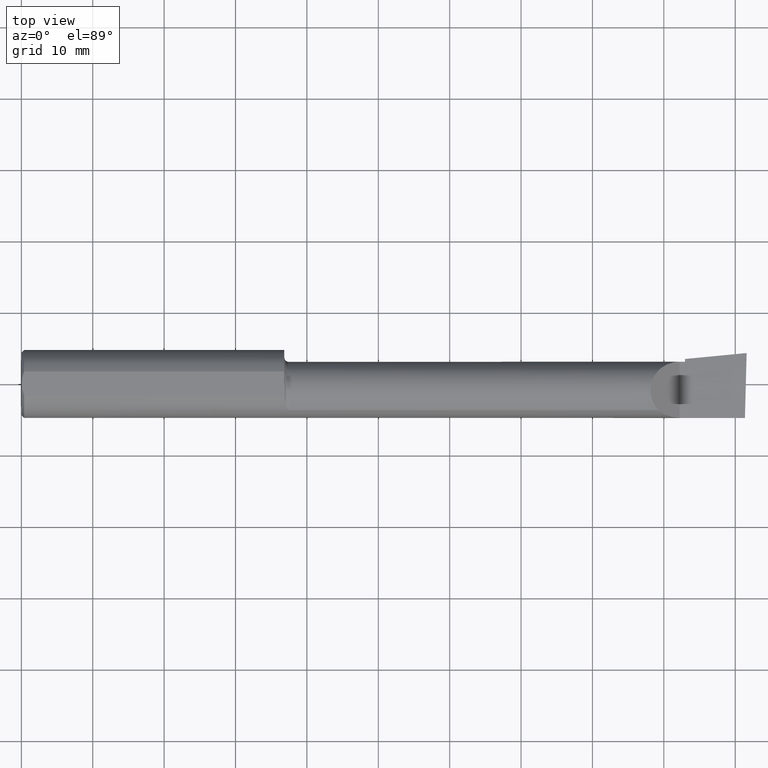
[diagram: clean part render]
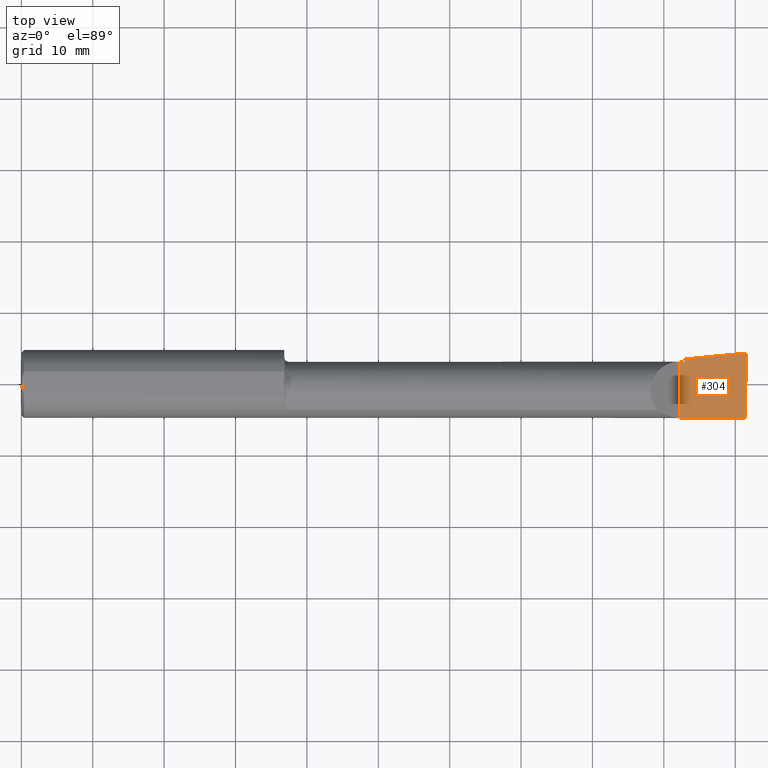
[diagram: same view with one face highlighted and labeled with its STEP entity id]
A machine part, top view. The second image highlights one B-rep face of the part: STEP entity #304.
In plain terms, the highlighted planar face has unit normal (-0, 0, -1).
Its self-contained STEP definition (entity closure, byte-faithful):
#14 = DIRECTION ( 'NONE',  ( 0.9953961983671787417, 0.09584575252022450864, -8.704446866213619353E-17 ) ) ;
#29 = EDGE_CURVE ( 'NONE', #474, #651, #586, .T. ) ;
#53 = LINE ( 'NONE', #253, #266 ) ;
#54 = AXIS2_PLACEMENT_3D ( 'NONE', #299, #501, #504 ) ;
#63 = ORIENTED_EDGE ( 'NONE', *, *, #532, .F. ) ;
#74 = CARTESIAN_POINT ( 'NONE',  ( 6.831754240405861070E-19, 0.1226499999999999257, 1.790477306702064235E-16 ) ) ;
#75 = DIRECTION ( 'NONE',  ( 4.268512490100411279E-18, 1.000000000000000000, -3.732688574539098315E-34 ) ) ;
#78 = CARTESIAN_POINT ( 'NONE',  ( 3.659999999999999698, -0.2500000000000000555, -1.410085000307074674E-16 ) ) ;
#131 = ORIENTED_EDGE ( 'NONE', *, *, #204, .F. ) ;
#138 = VECTOR ( 'NONE', #75, 39.37007874015748143 ) ;
#158 = EDGE_CURVE ( 'NONE', #651, #247, #177, .T. ) ;
#177 = LINE ( 'NONE', #260, #457 ) ;
#200 = EDGE_CURVE ( 'NONE', #293, #247, #515, .T. ) ;
#203 = DIRECTION ( 'NONE',  ( -1.000000000000000000, -0.000000000000000000, -0.000000000000000000 ) ) ;
#204 = EDGE_CURVE ( 'NONE', #553, #474, #381, .T. ) ;
#214 = CARTESIAN_POINT ( 'NONE',  ( 3.999999999999977351, 0.1706500000000262807, 9.240475838569370243E-14 ) ) ;
#247 = VERTEX_POINT ( 'NONE', #214 ) ;
#253 = CARTESIAN_POINT ( 'NONE',  ( 1.565719721143680372E-32, -0.1873499999999999610, 1.790477306702064235E-16 ) ) ;
#254 = VECTOR ( 'NONE', #311, 39.37007874015748143 ) ;
#260 = CARTESIAN_POINT ( 'NONE',  ( 1.839318137477267578, -0.03739999999999999575, 1.820477161534314746E-17 ) ) ;
#266 = VECTOR ( 'NONE', #203, 39.37007874015748143 ) ;
#290 = VERTEX_POINT ( 'NONE', #551 ) ;
#293 = VERTEX_POINT ( 'NONE', #585 ) ;
#299 = CARTESIAN_POINT ( 'NONE',  ( 4.000000000000000000, -0.2500000000000000555, -1.707404996040164512E-16 ) ) ;
#303 = PLANE ( 'NONE',  #54 ) ;
#304 = ADVANCED_FACE ( 'NONE', ( #649 ), #303, .F. ) ;
#311 = DIRECTION ( 'NONE',  ( 1.000000000000000000, -4.268512490100411279E-18, 0.000000000000000000 ) ) ;
#350 = EDGE_LOOP ( 'NONE', ( #63, #489, #520, #625, #131, #471 ) ) ;
#381 = LINE ( 'NONE', #74, #254 ) ;
#385 = EDGE_CURVE ( 'NONE', #290, #553, #446, .T. ) ;
#402 = CARTESIAN_POINT ( 'NONE',  ( 3.629999999999999893, -0.2500000000000000555, -1.383850883036508279E-16 ) ) ;
#446 = LINE ( 'NONE', #402, #523 ) ;
#457 = VECTOR ( 'NONE', #14, 39.37007874015748143 ) ;
#465 = CARTESIAN_POINT ( 'NONE',  ( 3.988992440003198858, -0.2497117568972564428, -1.697779208712868360E-16 ) ) ;
#471 = ORIENTED_EDGE ( 'NONE', *, *, #385, .F. ) ;
#474 = VERTEX_POINT ( 'NONE', #518 ) ;
#489 = ORIENTED_EDGE ( 'NONE', *, *, #200, .T. ) ;
#501 = DIRECTION ( 'NONE',  ( -8.744705756855574331E-17, 0.000000000000000000, -1.000000000000000000 ) ) ;
#504 = DIRECTION ( 'NONE',  ( -1.000000000000000000, 0.000000000000000000, 8.744705756855574331E-17 ) ) ;
#514 = CARTESIAN_POINT ( 'NONE',  ( 3.629999999999999893, 0.1226499999999998147, -1.383850883036508279E-16 ) ) ;
#515 = LINE ( 'NONE', #465, #607 ) ;
#518 = CARTESIAN_POINT ( 'NONE',  ( 3.659999999999999698, 0.1226500000000001755, 1.790477306702067193E-16 ) ) ;
#520 = ORIENTED_EDGE ( 'NONE', *, *, #158, .F. ) ;
#523 = VECTOR ( 'NONE', #602, 39.37007874015748143 ) ;
#529 = DIRECTION ( 'NONE',  ( 0.02617694830780135234, 0.9996573249755592583, -2.255099122138069919E-18 ) ) ;
#532 = EDGE_CURVE ( 'NONE', #293, #290, #53, .T. ) ;
#551 = CARTESIAN_POINT ( 'NONE',  ( 3.629999999999999893, -0.1873499999999999888, -1.383850883036508279E-16 ) ) ;
#553 = VERTEX_POINT ( 'NONE', #514 ) ;
#585 = CARTESIAN_POINT ( 'NONE',  ( 3.990625440078222397, -0.1873499999999999888, -1.699186010220949670E-16 ) ) ;
#586 = LINE ( 'NONE', #78, #138 ) ;
#602 = DIRECTION ( 'NONE',  ( -0.000000000000000000, 1.000000000000000000, -0.000000000000000000 ) ) ;
#607 = VECTOR ( 'NONE', #529, 39.37007874015748143 ) ;
#625 = ORIENTED_EDGE ( 'NONE', *, *, #29, .F. ) ;
#636 = CARTESIAN_POINT ( 'NONE',  ( 3.659999999999999698, 0.1379117236128416524, 1.790479185242052804E-16 ) ) ;
#649 = FACE_OUTER_BOUND ( 'NONE', #350, .T. ) ;
#651 = VERTEX_POINT ( 'NONE', #636 ) ;